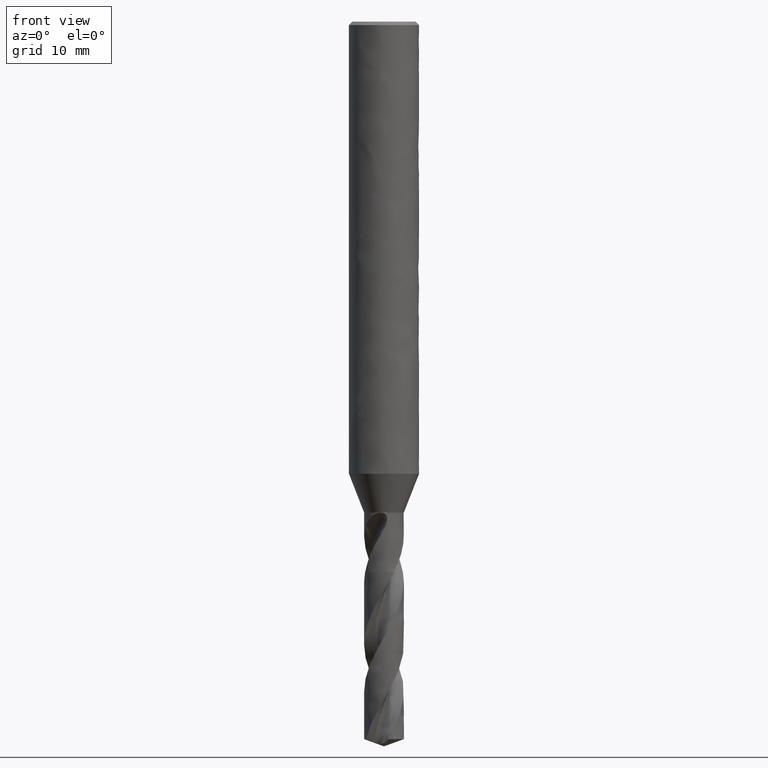
[diagram: clean part render]
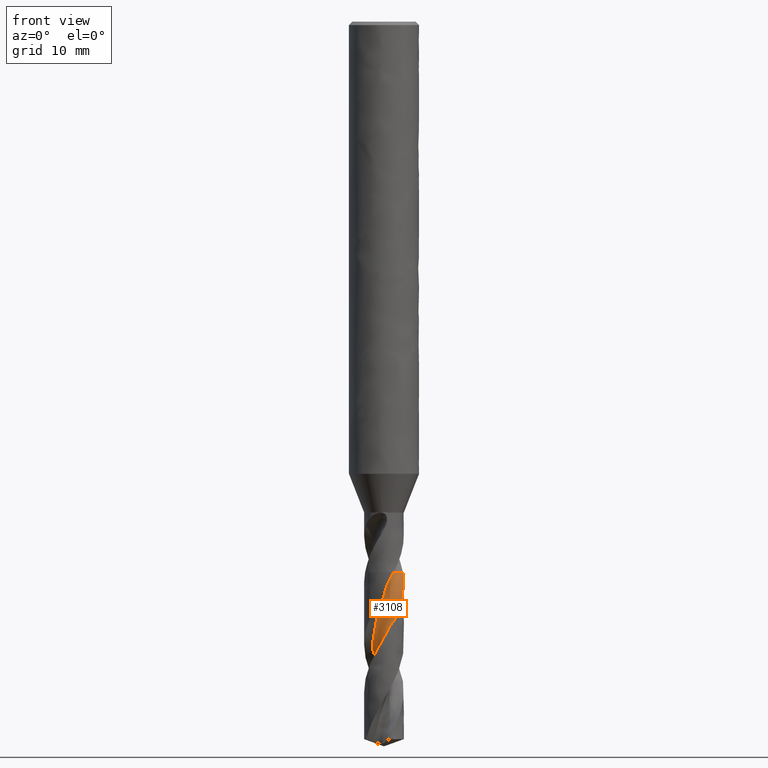
[diagram: same view with one face highlighted and labeled with its STEP entity id]
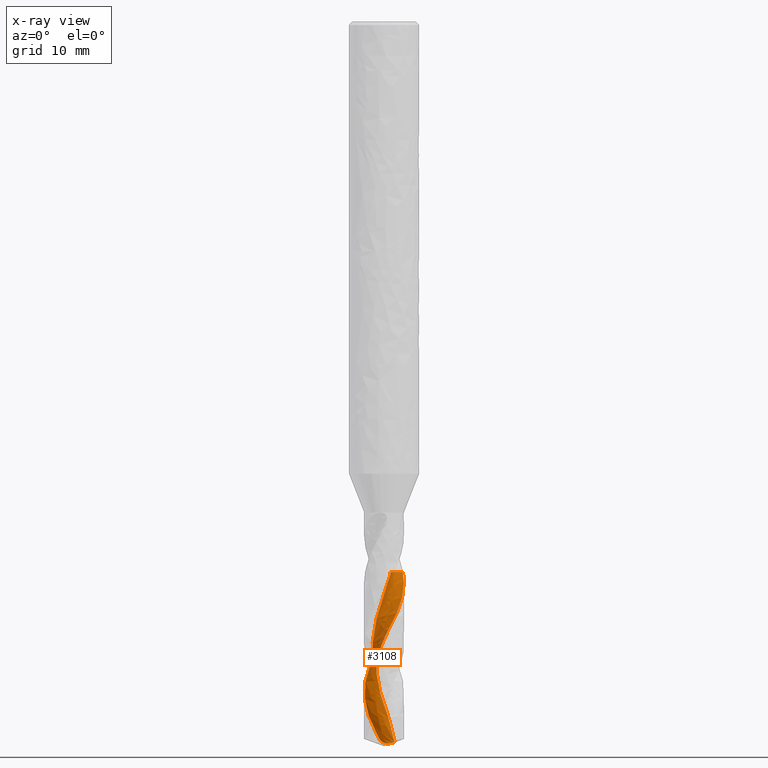
[diagram: x-ray of the same camera — body ghosted, the highlighted face saturated]
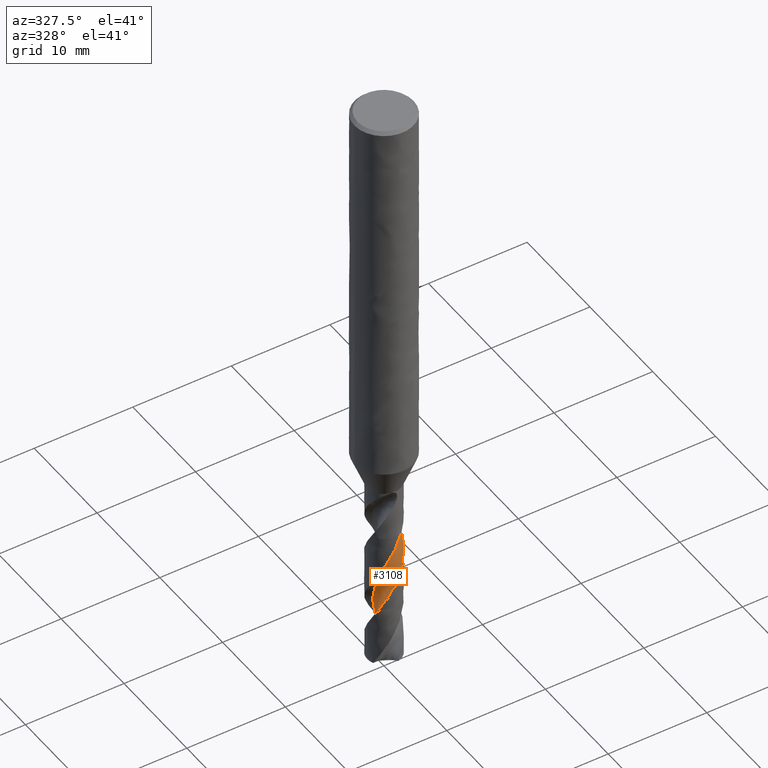
[diagram: same view with one face highlighted and labeled with its STEP entity id]
A machine part, front view. The second image highlights one B-rep face of the part: STEP entity #3108.
The next image is the same camera in x-ray: the body ghosted, the highlighted face saturated — about 0% of this face is hidden behind the body in this view.
A second angle (auxiliary view) of the same face is appended — the face is thin or edge-on in the first view.
In plain terms, the highlighted face is a freeform B-spline surface patch.
Its self-contained STEP definition (entity closure, byte-faithful):
#1727 = VERTEX_POINT('', #1728);
#1728 = CARTESIAN_POINT('', (0.618031492324751, -0.8086987832842, -47.1));
#1734 = EDGE_CURVE('', #1727, #1735, #1737, .T.);
#1735 = VERTEX_POINT('', #1736);
#1736 = CARTESIAN_POINT('', (1.61794167034545, 0.521789949462205, -47.1));
#1737 = B_SPLINE_CURVE_WITH_KNOTS('', 3, (#1738, #1739, #1740, #1741, #1742, #1743, #1744, #1745, #1746, #1747, #1748, #1749, #1750, #1751, #1752, #1753, #1754, #1755, #1756, #1757, #1758, #1759, #1760, #1761, #1762, #1763, #1764, #1765, #1766, #1767, #1768, #1769, #1770, #1771, #1772, #1773, #1774, #1775, #1776, #1777, #1778, #1779, #1780, #1781, #1782, #1783, #1784, #1785, #1786), .UNSPECIFIED., .F., .U., (4, 3, 3, 3, 3, 3, 3, 3, 3, 3, 3, 3, 3, 3, 3, 3, 4), (0., 0.132414467896417, 0.26453587852635, 0.396373986305913, 0.527935768738583, 0.659225693460962, 0.790245888023809, 0.92099622613475, 0.97920382696937, 1.11161682755442, 1.24373682610895, 1.37557356258316, 1.50713400159512, 1.63842259895264, 1.76944147099676, 1.90019048045683, 1.94520905265692), .UNSPECIFIED.);
#1738 = CARTESIAN_POINT('', (0.618031492324749, -0.808698783284199, -47.1));
#1739 = CARTESIAN_POINT('', (0.604582911898384, -0.766659367296961, -47.1));
#1740 = CARTESIAN_POINT('', (0.593846143149466, -0.723655131779357, -47.1));
#1741 = CARTESIAN_POINT('', (0.585956447327686, -0.68022784183545, -47.1));
#1742 = CARTESIAN_POINT('', (0.578084212835681, -0.636896664371425, -47.1));
#1743 = CARTESIAN_POINT('', (0.573013462679577, -0.592962956791534, -47.1));
#1744 = CARTESIAN_POINT('', (0.570807796341173, -0.548977754139738, -47.1));
#1745 = CARTESIAN_POINT('', (0.568606859528117, -0.505086867263303, -47.1));
#1746 = CARTESIAN_POINT('', (0.569249509645297, -0.460961800921687, -47.1));
#1747 = CARTESIAN_POINT('', (0.572727720726931, -0.417153626783443, -47.1));
#1748 = CARTESIAN_POINT('', (0.576198641671442, -0.373437272143517, -47.1));
#1749 = CARTESIAN_POINT('', (0.582507604006801, -0.329855063423228, -47.1));
#1750 = CARTESIAN_POINT('', (0.591576144915949, -0.286949020480702, -47.1));
#1751 = CARTESIAN_POINT('', (0.600625946699482, -0.244131638077553, -47.1));
#1752 = CARTESIAN_POINT('', (0.612461286728677, -0.201810668961502, -47.1));
#1753 = CARTESIAN_POINT('', (0.626935577964107, -0.160510281052784, -47.1));
#1754 = CARTESIAN_POINT('', (0.641380132318414, -0.119294743221045, -47.1));
#1755 = CARTESIAN_POINT('', (0.658512210909826, -0.078925948604169, -47.1));
#1756 = CARTESIAN_POINT('', (0.678120492041487, -0.039901840410441, -47.1));
#1757 = CARTESIAN_POINT('', (0.69768838687093, -0.00095810843208281, -47.1));
#1758 = CARTESIAN_POINT('', (0.719802458512893, 0.036806117631637, -47.1));
#1759 = CARTESIAN_POINT('', (0.744191052149378, 0.0729269325295977, -47.1));
#1760 = CARTESIAN_POINT('', (0.755048397100225, 0.08900724257528, -47.1));
#1761 = CARTESIAN_POINT('', (0.766369320630145, 0.104784069460496, -47.1));
#1762 = CARTESIAN_POINT('', (0.778126193138506, 0.120218908603458, -47.1));
#1763 = CARTESIAN_POINT('', (0.804871201419314, 0.155330703887271, -47.1));
#1764 = CARTESIAN_POINT('', (0.833960856805314, 0.188773050068816, -47.1));
#1765 = CARTESIAN_POINT('', (0.865028697439553, 0.220124651532193, -47.1));
#1766 = CARTESIAN_POINT('', (0.896027791497931, 0.251406878516868, -47.1));
#1767 = CARTESIAN_POINT('', (0.929126027042118, 0.280738564714223, -47.1));
#1768 = CARTESIAN_POINT('', (0.963908280922819, 0.307751827614867, -47.1));
#1769 = CARTESIAN_POINT('', (0.998615962492743, 0.334707174733427, -47.1));
#1770 = CARTESIAN_POINT('', (1.03514505293563, 0.359466398884926, -47.1));
#1771 = CARTESIAN_POINT('', (1.07303935510474, 0.381720292057972, -47.1));
#1772 = CARTESIAN_POINT('', (1.11085424011136, 0.403927546529444, -47.1));
#1773 = CARTESIAN_POINT('', (1.15018551753087, 0.423732157277462, -47.1));
#1774 = CARTESIAN_POINT('', (1.19054404511897, 0.440887824858332, -47.1));
#1775 = CARTESIAN_POINT('', (1.23081918039709, 0.458008043902443, -47.1));
#1776 = CARTESIAN_POINT('', (1.27228374732587, 0.472561051118882, -47.1));
#1777 = CARTESIAN_POINT('', (1.31442419533809, 0.484366603334632, -47.1));
#1778 = CARTESIAN_POINT('', (1.35647806808196, 0.496147901682679, -47.1));
#1779 = CARTESIAN_POINT('', (1.39937811465555, 0.505241556379506, -47.1));
#1780 = CARTESIAN_POINT('', (1.44259517987578, 0.51153540077495, -47.1));
#1781 = CARTESIAN_POINT('', (1.48572322991283, 0.51781628159434, -47.1));
#1782 = CARTESIAN_POINT('', (1.52934376030201, 0.521334664968441, -47.1));
#1783 = CARTESIAN_POINT('', (1.57292093633371, 0.522047331066657, -47.1));
#1784 = CARTESIAN_POINT('', (1.58792512071385, 0.522292711206281, -47.1));
#1785 = CARTESIAN_POINT('', (1.60293933953734, 0.522206821680041, -47.1));
#1786 = CARTESIAN_POINT('', (1.61794166940674, 0.521789915684495, -47.1));
#2008 = VERTEX_POINT('', #2009);
#2009 = CARTESIAN_POINT('', (0.900593143866058, 0.473601072565502, -61.6296496025692));
#2034 = EDGE_CURVE('', #2008, #1727, #2035, .T.);
#2035 = B_SPLINE_CURVE_WITH_KNOTS('', 3, (#2036, #2037, #2038, #2039, #2040, #2041, #2042, #2043, #2044, #2045, #2046, #2047, #2048, #2049, #2050, #2051, #2052, #2053, #2054, #2055, #2056, #2057, #2058, #2059, #2060, #2061, #2062, #2063, #2064, #2065, #2066, #2067, #2068, #2069, #2070, #2071, #2072, #2073, #2074, #2075, #2076, #2077, #2078, #2079, #2080, #2081, #2082, #2083, #2084, #2085), .UNSPECIFIED., .F., .U., (4, 1, 1, 1, 1, 1, 1, 1, 1, 1, 1, 1, 1, 1, 1, 1, 1, 1, 1, 1, 1, 1, 1, 1, 1, 1, 1, 1, 1, 1, 1, 1, 1, 1, 1, 1, 1, 1, 1, 1, 1, 1, 1, 1, 1, 1, 1, 4), (0.420350397430768, 0.6271875, 0.94078125, 1.254375, 1.56796875, 1.8815625, 2.19515625, 2.50875, 2.82234375, 3.1359375, 3.44953125, 3.763125, 4.07671875, 4.3903125, 4.70390625, 5.0175, 5.33109375, 5.6446875, 5.95828125, 6.271875, 6.58546875, 6.8990625, 7.21265625, 7.52625, 7.83984375, 8.1534375, 8.46703125, 8.780625, 9.09421875, 9.4078125, 9.72140625, 10.035, 10.34859375, 10.6621875, 10.97578125, 11.289375, 11.60296875, 11.9165625, 12.23015625, 12.54375, 12.85734375, 13.1709375, 13.48453125, 13.798125, 14.11171875, 14.4253125, 14.73890625, 14.95), .UNSPECIFIED.);
#2036 = CARTESIAN_POINT('', (0.900593143866057, 0.473601072565503, -61.6296496025692));
#2037 = CARTESIAN_POINT('', (0.88909663108777, 0.494181489330291, -61.5607039017128));
#2038 = CARTESIAN_POINT('', (0.858416260722237, 0.544925059186768, -61.3872269508564));
#2039 = CARTESIAN_POINT('', (0.80247456673114, 0.621576995761275, -61.10921875));
#2040 = CARTESIAN_POINT('', (0.730894294827708, 0.700802886661506, -60.795625));
#2041 = CARTESIAN_POINT('', (0.651645233727059, 0.771975525319629, -60.48203125));
#2042 = CARTESIAN_POINT('', (0.565614912916918, 0.834369322157897, -60.1684375));
#2043 = CARTESIAN_POINT('', (0.473757260040917, 0.887354164561376, -59.85484375));
#2044 = CARTESIAN_POINT('', (0.377083113507031, 0.930401796374039, -59.54125));
#2045 = CARTESIAN_POINT('', (0.27664939272255, 0.963090626502894, -59.22765625));
#2046 = CARTESIAN_POINT('', (0.17354808786734, 0.985109583072605, -58.9140625));
#2047 = CARTESIAN_POINT('', (0.0688948962597605, 0.996260806556506, -58.60046875));
#2048 = CARTESIAN_POINT('', (-0.036182307197033, 0.996461209410524, -58.286875));
#2049 = CARTESIAN_POINT('', (-0.140555073109542, 0.985742880712923, -57.97328125));
#2050 = CARTESIAN_POINT('', (-0.243105936185263, 0.964252341163749, -57.6596875));
#2051 = CARTESIAN_POINT('', (-0.342739819249292, 0.93224866021399, -57.34609375));
#2052 = CARTESIAN_POINT('', (-0.4383951728278, 0.890100458768188, -57.0325));
#2053 = CARTESIAN_POINT('', (-0.529054743954637, 0.838281830841213, -56.71890625));
#2054 = CARTESIAN_POINT('', (-0.613755871669376, 0.777367227517651, -56.4053125));
#2055 = CARTESIAN_POINT('', (-0.691600211540215, 0.708025355985706, -56.09171875));
#2056 = CARTESIAN_POINT('', (-0.761762797203743, 0.631012155354021, -55.778125));
#2057 = CARTESIAN_POINT('', (-0.82350035337031, 0.547162919303402, -55.46453125));
#2058 = CARTESIAN_POINT('', (-0.876158781925442, 0.457383643319855, -55.1509375));
#2059 = CARTESIAN_POINT('', (-0.919179750605832, 0.362641681238055, -54.83734375));
#2060 = CARTESIAN_POINT('', (-0.952106322174093, 0.263955802041469, -54.52375));
#2061 = CARTESIAN_POINT('', (-0.974587570988836, 0.162385743268281, -54.21015625));
#2062 = CARTESIAN_POINT('', (-0.986382143290137, 0.0590213619189024, -53.8965625));
#2063 = CARTESIAN_POINT('', (-0.987360727317255, -0.0450285125845154, -53.58296875));
#2064 = CARTESIAN_POINT('', (-0.97750740946456, -0.148647416102408, -53.269375));
#2065 = CARTESIAN_POINT('', (-0.956919902980084, -0.25072266907116, -52.95578125));
#2066 = CARTESIAN_POINT('', (-0.925808646134722, -0.35015676747814, -52.6421875));
#2067 = CARTESIAN_POINT('', (-0.884494777253087, -0.445878635744693, -52.32859375));
#2068 = CARTESIAN_POINT('', (-0.833407004413751, -0.536854632843929, -52.015));
#2069 = CARTESIAN_POINT('', (-0.773077397910616, -0.62209920504156, -51.70140625));
#2070 = CARTESIAN_POINT('', (-0.7041361436346, -0.700685081655795, -51.3878125));
#2071 = CARTESIAN_POINT('', (-0.627305305296396, -0.771752914168686, -51.07421875));
#2072 = CARTESIAN_POINT('', (-0.543391652803215, -0.834520263847745, -50.760625));
#2073 = CARTESIAN_POINT('', (-0.453278622974421, -0.888289848757444, -50.44703125));
#2074 = CARTESIAN_POINT('', (-0.357917487318539, -0.932456967467643, -50.1334375));
#2075 = CARTESIAN_POINT('', (-0.258317808741261, -0.966516024396092, -49.81984375));
#2076 = CARTESIAN_POINT('', (-0.155537278405767, -0.990066088467478, -49.50625));
#2077 = CARTESIAN_POINT('', (-0.0506710217786313, -1.00281543015657, -49.19265625));
#2078 = CARTESIAN_POINT('', (0.0551594998433162, -1.00458497362955, -48.8790625));
#2079 = CARTESIAN_POINT('', (0.160817979896506, -0.995310676192572, -48.56546875));
#2080 = CARTESIAN_POINT('', (0.265164690774124, -0.97504461219404, -48.251875));
#2081 = CARTESIAN_POINT('', (0.367069031112613, -0.943955464476947, -47.93828125));
#2082 = CARTESIAN_POINT('', (0.465418223649376, -0.902325721072051, -47.6246875));
#2083 = CARTESIAN_POINT('', (0.548928985552527, -0.85619608987983, -47.3452604166667));
#2084 = CARTESIAN_POINT('', (0.598544607572714, -0.822821182327075, -47.1703645833333));
#2085 = CARTESIAN_POINT('', (0.618031492324751, -0.8086987832842, -47.1));
#2969 = EDGE_CURVE('', #1735, #2970, #2972, .T.);
#2970 = VERTEX_POINT('', #2971);
#2971 = CARTESIAN_POINT('', (1.69886078488604, 0.06222566654029, -47.9127110224979));
#2972 = B_SPLINE_CURVE_WITH_KNOTS('', 3, (#2973, #2974, #2975, #2976, #2977, #2978, #2979, #2980, #2981, #2982), .UNSPECIFIED., .F., .U., (4, 3, 3, 4), (2.04236680302544, 2.34638589182506, 2.78859609689633, 2.98010819698806), .UNSPECIFIED.);
#2973 = CARTESIAN_POINT('', (1.61794167034545, 0.521789949462205, -47.1));
#2974 = CARTESIAN_POINT('', (1.6334708824653, 0.473637700799258, -47.1878062558081));
#2975 = CARTESIAN_POINT('', (1.64685376451737, 0.424772247648373, -47.275669669243));
#2976 = CARTESIAN_POINT('', (1.65802509109485, 0.375436808664161, -47.3634816841506));
#2977 = CARTESIAN_POINT('', (1.67427431622163, 0.303676069308517, -47.4912084307615));
#2978 = CARTESIAN_POINT('', (1.6858619193593, 0.230826135235117, -47.6190052595892));
#2979 = CARTESIAN_POINT('', (1.69268063615451, 0.157582562447593, -47.7467418908916));
#2980 = CARTESIAN_POINT('', (1.69563368146737, 0.125862284892037, -47.8020619858122));
#2981 = CARTESIAN_POINT('', (1.69769483725328, 0.0940579123106205, -47.8573887116082));
#2982 = CARTESIAN_POINT('', (1.69886078488604, 0.0622256665403072, -47.9127110224979));
#3108 = ADVANCED_FACE('', (#3109), #3268, .T.);
#3109 = FACE_OUTER_BOUND('', #3110, .T.);
#3110 = EDGE_LOOP('', (#3111, #3112, #3113, #3206, #3218, #3267));
#3111 = ORIENTED_EDGE('', *, *, #1734, .F.);
#3112 = ORIENTED_EDGE('', *, *, #2034, .F.);
#3113 = ORIENTED_EDGE('', *, *, #3114, .T.);
#3114 = EDGE_CURVE('', #2008, #3115, #3117, .T.);
#3115 = VERTEX_POINT('', #3116);
#3116 = CARTESIAN_POINT('', (-0.381207649741527, 1.65670779794705, -61.3812506017475));
#3117 = B_SPLINE_CURVE_WITH_KNOTS('', 3, (#3118, #3119, #3120, #3121, #3122, #3123, #3124, #3125, #3126, #3127, #3128, #3129, #3130, #3131, #3132, #3133, #3134, #3135, #3136, #3137, #3138, #3139, #3140, #3141, #3142, #3143, #3144, #3145, #3146, #3147, #3148, #3149, #3150, #3151, #3152, #3153, #3154, #3155, #3156, #3157, #3158, #3159, #3160, #3161, #3162, #3163, #3164, #3165, #3166, #3167, #3168, #3169, #3170, #3171, #3172, #3173, #3174, #3175, #3176, #3177, #3178, #3179, #3180, #3181, #3182, #3183, #3184, #3185, #3186, #3187, #3188, #3189, #3190, #3191, #3192, #3193, #3194, #3195, #3196, #3197, #3198, #3199, #3200, #3201, #3202, #3203, #3204, #3205), .UNSPECIFIED., .F., .U., (4, 3, 3, 3, 3, 3, 3, 3, 3, 3, 3, 3, 3, 3, 3, 3, 3, 3, 3, 3, 3, 3, 3, 3, 3, 3, 3, 3, 3, 4), (0., 0.087736804954015, 0.175313604319629, 0.233592483702, 0.291786898436233, 0.34989091802178, 0.407910682743587, 0.465869295109886, 0.523807408004701, 0.581775879321774, 0.639820930342937, 0.697968833758567, 0.756219330741334, 0.814550724445924, 0.872931299192583, 0.931329699615461, 0.989720669662562, 1.02878987331997, 1.05481217639862, 1.14346229643422, 1.23175328480974, 1.31976427557642, 1.40755577682321, 1.49517209721768, 1.58264498905504, 1.66999687970493, 1.7572433496309, 1.84439491972149, 1.93145829909166, 2.0282530318019), .UNSPECIFIED.);
#3118 = CARTESIAN_POINT('', (0.900593143866058, 0.473601072565502, -61.6296496025692));
#3119 = CARTESIAN_POINT('', (0.873915545816821, 0.466661012012999, -61.639419276965));
#3120 = CARTESIAN_POINT('', (0.846765997592629, 0.461188716615392, -61.6490736614793));
#3121 = CARTESIAN_POINT('', (0.819351463363141, 0.457280707326207, -61.6584798292603));
#3122 = CARTESIAN_POINT('', (0.791986925012606, 0.453379825072548, -61.6678688430156));
#3123 = CARTESIAN_POINT('', (0.764276518247691, 0.45102673640264, -61.6770390482816));
#3124 = CARTESIAN_POINT('', (0.736446353149242, 0.450288540702773, -61.6858211550046));
#3125 = CARTESIAN_POINT('', (0.717926484340233, 0.449797300802883, -61.6916652979984));
#3126 = CARTESIAN_POINT('', (0.699321152204079, 0.450019168004605, -61.6973472579632));
#3127 = CARTESIAN_POINT('', (0.680701792454403, 0.45096394670661, -61.7028069008444));
#3128 = CARTESIAN_POINT('', (0.662109418084104, 0.451907356123524, -61.7082586309651));
#3129 = CARTESIAN_POINT('', (0.643475016826177, 0.453573212051435, -61.7134968073165));
#3130 = CARTESIAN_POINT('', (0.624873503510298, 0.45596063246724, -61.7184537916296));
#3131 = CARTESIAN_POINT('', (0.606300884488995, 0.458344344430535, -61.7234030761086));
#3132 = CARTESIAN_POINT('', (0.587731608567595, 0.46145139723604, -61.7280796237138));
#3133 = CARTESIAN_POINT('', (0.569243791672439, 0.465267336318905, -61.7324107797091));
#3134 = CARTESIAN_POINT('', (0.550782783395766, 0.469077742025081, -61.7367356552274));
#3135 = CARTESIAN_POINT('', (0.53237239142666, 0.473601524993575, -61.7407228402787));
#3136 = CARTESIAN_POINT('', (0.514093091325785, 0.478807666135574, -61.7442999688363));
#3137 = CARTESIAN_POINT('', (0.49583305745709, 0.484008320047568, -61.7478733271298));
#3138 = CARTESIAN_POINT('', (0.477672548871215, 0.489898942025117, -61.7510429718125));
#3139 = CARTESIAN_POINT('', (0.459692322982028, 0.49642992955873, -61.7537452312933));
#3140 = CARTESIAN_POINT('', (0.441718456546817, 0.502958607137235, -61.7564465350077));
#3141 = CARTESIAN_POINT('', (0.423893572430117, 0.510138456627629, -61.7586848187696));
#3142 = CARTESIAN_POINT('', (0.406294857134295, 0.517901920025118, -61.7604152532021));
#3143 = CARTESIAN_POINT('', (0.388686920460636, 0.52566945132348, -61.7621465943478));
#3144 = CARTESIAN_POINT('', (0.37127543072721, 0.534034094600519, -61.7633721193448));
#3145 = CARTESIAN_POINT('', (0.354128754417751, 0.542914968165498, -61.7640743264361));
#3146 = CARTESIAN_POINT('', (0.336959426356952, 0.551807573878215, -61.7647774611837));
#3147 = CARTESIAN_POINT('', (0.320028079013711, 0.561231485329713, -61.7649571277617));
#3148 = CARTESIAN_POINT('', (0.30338934599532, 0.571100709625821, -61.7646260141404));
#3149 = CARTESIAN_POINT('', (0.286721130126942, 0.580987421603178, -61.7642943138053));
#3150 = CARTESIAN_POINT('', (0.270322499912908, 0.591334686521687, -61.7634501099943));
#3151 = CARTESIAN_POINT('', (0.254231975549154, 0.602060541150228, -61.7621319342635));
#3152 = CARTESIAN_POINT('', (0.238113061781919, 0.612805319998256, -61.7608114328023));
#3153 = CARTESIAN_POINT('', (0.222283329821348, 0.623942853035375, -61.7590144250361));
#3154 = CARTESIAN_POINT('', (0.206766278275696, 0.635402037250919, -61.7567959602333));
#3155 = CARTESIAN_POINT('', (0.191227677066652, 0.646877135672965, -61.7545744144862));
#3156 = CARTESIAN_POINT('', (0.175986672315675, 0.658686233434081, -61.7519286710601));
#3157 = CARTESIAN_POINT('', (0.161055348549157, 0.670772002456406, -61.748920177325));
#3158 = CARTESIAN_POINT('', (0.146111435711547, 0.682867961372663, -61.7459091470338));
#3159 = CARTESIAN_POINT('', (0.131465348978061, 0.695250925798871, -61.7425327553774));
#3160 = CARTESIAN_POINT('', (0.117122070614954, 0.707876884591618, -61.7388510999374));
#3161 = CARTESIAN_POINT('', (0.102774412736278, 0.720506698540885, -61.7351683203564));
#3162 = CARTESIAN_POINT('', (0.0887202194353098, 0.733388012896899, -61.7311779128428));
#3163 = CARTESIAN_POINT('', (0.074961026774103, 0.746487852789211, -61.726934192241));
#3164 = CARTESIAN_POINT('', (0.0612035847768037, 0.75958602591099, -61.7226910115929));
#3165 = CARTESIAN_POINT('', (0.0477336514021188, 0.772909764808764, -61.7181923958021));
#3166 = CARTESIAN_POINT('', (0.0345518277136987, 0.78643438847559, -61.7134851662169));
#3167 = CARTESIAN_POINT('', (0.025731913370034, 0.795483669143521, -61.7103355745733));
#3168 = CARTESIAN_POINT('', (0.0170387333161297, 0.804625312955694, -61.7070916468967));
#3169 = CARTESIAN_POINT('', (0.0084725784961693, 0.813853432816587, -61.7037655241402));
#3170 = CARTESIAN_POINT('', (0.00276703407559905, 0.819999883457658, -61.7015501379448));
#3171 = CARTESIAN_POINT('', (-0.00288273211310762, 0.826185336901564, -61.6992980355044));
#3172 = CARTESIAN_POINT('', (-0.00847658126530775, 0.832408278671218, -61.697012455489));
#3173 = CARTESIAN_POINT('', (-0.0275331343038624, 0.853607960082469, -61.6892261753082));
#3174 = CARTESIAN_POINT('', (-0.0459514921326319, 0.875253313258865, -61.6810493643486));
#3175 = CARTESIAN_POINT('', (-0.0637212244021331, 0.897295503629726, -61.6725886715029));
#3176 = CARTESIAN_POINT('', (-0.0814189694769549, 0.919248398595044, -61.6641622538807));
#3177 = CARTESIAN_POINT('', (-0.098486781983559, 0.941612053590396, -61.6554473185107));
#3178 = CARTESIAN_POINT('', (-0.114905916980162, 0.964347856043296, -61.6465232171654));
#3179 = CARTESIAN_POINT('', (-0.131272981900048, 0.987011556343544, -61.6376274168628));
#3180 = CARTESIAN_POINT('', (-0.147006855149287, 1.01006115235946, -61.628517133508));
#3181 = CARTESIAN_POINT('', (-0.162080925678721, 1.0334620446348, -61.6192526838856));
#3182 = CARTESIAN_POINT('', (-0.177117403170348, 1.05680457771472, -61.6100113387594));
#3183 = CARTESIAN_POINT('', (-0.191507490467652, 1.08051265271094, -61.6006100179762));
#3184 = CARTESIAN_POINT('', (-0.205217604520893, 1.1045519993331, -61.5910961043592));
#3185 = CARTESIAN_POINT('', (-0.218900361148515, 1.12854337738004, -61.5816011749886));
#3186 = CARTESIAN_POINT('', (-0.231915140497221, 1.15288122245024, -61.571987390948));
#3187 = CARTESIAN_POINT('', (-0.24422223644899, 1.17752918519035, -61.5622935240585));
#3188 = CARTESIAN_POINT('', (-0.2565091855947, 1.20213679903524, -61.5526155261001));
#3189 = CARTESIAN_POINT('', (-0.268099398866489, 1.22707102965, -61.5428507002034));
#3190 = CARTESIAN_POINT('', (-0.278947758727813, 1.25229163222905, -61.5330322626087));
#3191 = CARTESIAN_POINT('', (-0.289781112060855, 1.27747734716695, -61.5232274068515));
#3192 = CARTESIAN_POINT('', (-0.299882693675008, 1.30296755734142, -61.5133616455606));
#3193 = CARTESIAN_POINT('', (-0.309202597653607, 1.32871653018326, -61.5034648397522));
#3194 = CARTESIAN_POINT('', (-0.318511253895989, 1.35443442784931, -61.4935799779146));
#3195 = CARTESIAN_POINT('', (-0.327047497923303, 1.38043115635522, -61.4836561443008));
#3196 = CARTESIAN_POINT('', (-0.334757266411273, 1.40665392844054, -61.4737214812983));
#3197 = CARTESIAN_POINT('', (-0.342458648820574, 1.43284817746062, -61.4637976244395));
#3198 = CARTESIAN_POINT('', (-0.349341944453415, 1.4592908206692, -61.4538542804113));
#3199 = CARTESIAN_POINT('', (-0.355349688096707, 1.48592037028438, -61.4439191401855));
#3200 = CARTESIAN_POINT('', (-0.361351352363122, 1.51252297283293, -61.4339940535615));
#3201 = CARTESIAN_POINT('', (-0.366484811246897, 1.5393374749422, -61.4240676766547));
#3202 = CARTESIAN_POINT('', (-0.370690211930571, 1.56629192080237, -61.4141682709009));
#3203 = CARTESIAN_POINT('', (-0.375365663745794, 1.59625915158599, -61.4031623767941));
#3204 = CARTESIAN_POINT('', (-0.37889941565526, 1.62643686632424, -61.3921761328419));
#3205 = CARTESIAN_POINT('', (-0.381207649741527, 1.65670779794705, -61.3812506017475));
#3206 = ORIENTED_EDGE('', *, *, #3207, .F.);
#3207 = EDGE_CURVE('', #3208, #3115, #3210, .T.);
#3208 = VERTEX_POINT('', #3209);
#3209 = CARTESIAN_POINT('', (-0.666461882619235, 1.56391449862697, -60.8507741582357));
#3210 = B_SPLINE_CURVE_WITH_KNOTS('', 3, (#3211, #3212, #3213, #3214, #3215, #3216, #3217), .UNSPECIFIED., .F., .U., (4, 3, 4), (0., 0.442571051262796, 0.609529027175554), .UNSPECIFIED.);
#3211 = CARTESIAN_POINT('', (-0.666461882619225, 1.56391449862697, -60.8507741582357));
#3212 = CARTESIAN_POINT('', (-0.599581770536708, 1.59241544637535, -60.9791407576831));
#3213 = CARTESIAN_POINT('', (-0.530846429524956, 1.61662750097689, -61.1075774000474));
#3214 = CARTESIAN_POINT('', (-0.460888255132056, 1.63633187840405, -61.235955079627));
#3215 = CARTESIAN_POINT('', (-0.434496842585158, 1.64376526782813, -61.2843849926858));
#3216 = CARTESIAN_POINT('', (-0.407925077455099, 1.65056013096651, -61.3328191691804));
#3217 = CARTESIAN_POINT('', (-0.381207649741524, 1.65670779794705, -61.3812506017475));
#3218 = ORIENTED_EDGE('', *, *, #3219, .T.);
#3219 = EDGE_CURVE('', #3208, #2970, #3220, .T.);
#3220 = B_SPLINE_CURVE_WITH_KNOTS('', 3, (#3221, #3222, #3223, #3224, #3225, #3226, #3227, #3228, #3229, #3230, #3231, #3232, #3233, #3234, #3235, #3236, #3237, #3238, #3239, #3240, #3241, #3242, #3243, #3244, #3245, #3246, #3247, #3248, #3249, #3250, #3251, #3252, #3253, #3254, #3255, #3256, #3257, #3258, #3259, #3260, #3261, #3262, #3263, #3264, #3265, #3266), .UNSPECIFIED., .F., .U., (4, 1, 1, 1, 1, 1, 1, 1, 1, 1, 1, 1, 1, 1, 1, 1, 1, 1, 1, 1, 1, 1, 1, 1, 1, 1, 1, 1, 1, 1, 1, 1, 1, 1, 1, 1, 1, 1, 1, 1, 1, 1, 1, 4), (1.19922584176433, 1.254375, 1.56796875, 1.8815625, 2.19515625, 2.50875, 2.82234375, 3.1359375, 3.44953125, 3.763125, 4.07671875, 4.3903125, 4.70390625, 5.0175, 5.33109375, 5.6446875, 5.95828125, 6.271875, 6.58546875, 6.8990625, 7.21265625, 7.52625, 7.83984375, 8.1534375, 8.46703125, 8.780625, 9.09421875, 9.4078125, 9.72140625, 10.035, 10.34859375, 10.6621875, 10.97578125, 11.289375, 11.60296875, 11.9165625, 12.23015625, 12.54375, 12.85734375, 13.1709375, 13.48453125, 13.798125, 14.11171875, 14.1372889775021), .UNSPECIFIED.);
#3221 = CARTESIAN_POINT('', (-0.666461882619235, 1.56391449862697, -60.8507741582357));
#3222 = CARTESIAN_POINT('', (-0.676025976696615, 1.55957963749224, -60.8323911054904));
#3223 = CARTESIAN_POINT('', (-0.739694770968782, 1.5300151665782, -60.7094768027452));
#3224 = CARTESIAN_POINT('', (-0.853921394594385, 1.46818883646398, -60.48203125));
#3225 = CARTESIAN_POINT('', (-1.00134653960241, 1.36724502923022, -60.1684375));
#3226 = CARTESIAN_POINT('', (-1.13716831292383, 1.25175552311692, -59.85484375));
#3227 = CARTESIAN_POINT('', (-1.25997886105044, 1.12302219590057, -59.54125));
#3228 = CARTESIAN_POINT('', (-1.36851316808685, 0.982480186779804, -59.22765625));
#3229 = CARTESIAN_POINT('', (-1.46166138244538, 0.831682642169886, -58.9140625));
#3230 = CARTESIAN_POINT('', (-1.53847950502343, 0.672284245588309, -58.60046875));
#3231 = CARTESIAN_POINT('', (-1.59819837645806, 0.506023844050801, -58.286875));
#3232 = CARTESIAN_POINT('', (-1.64023087719735, 0.334706305092964, -57.97328125));
#3233 = CARTESIAN_POINT('', (-1.66417728213395, 0.160183794348582, -57.6596875));
#3234 = CARTESIAN_POINT('', (-1.66982872621163, -0.0156633453800675, -57.34609375));
#3235 = CARTESIAN_POINT('', (-1.65716875602019, -0.190945926362845, -57.0325));
#3236 = CARTESIAN_POINT('', (-1.62637296011426, -0.363785272243727, -56.71890625));
#3237 = CARTESIAN_POINT('', (-1.57780668872922, -0.532332411555354, -56.4053125));
#3238 = CARTESIAN_POINT('', (-1.51202089123811, -0.694786923973439, -56.09171875));
#3239 = CARTESIAN_POINT('', (-1.42974611704214, -0.849415258745773, -55.778125));
#3240 = CARTESIAN_POINT('', (-1.33188474244795, -0.99456835023722, -55.46453125));
#3241 = CARTESIAN_POINT('', (-1.21950150232802, -1.12869836255333, -55.1509375));
#3242 = CARTESIAN_POINT('', (-1.09381242085287, -1.25037440368409, -54.83734375));
#3243 = CARTESIAN_POINT('', (-0.956172250202362, -1.35829705946721, -54.52375));
#3244 = CARTESIAN_POINT('', (-0.808060539790158, -1.45131160882211, -54.21015625));
#3245 = CARTESIAN_POINT('', (-0.651066471061365, -1.52841979405655, -53.8965625));
#3246 = CARTESIAN_POINT('', (-0.486872604248597, -1.58879003349323, -53.58296875));
#3247 = CARTESIAN_POINT('', (-0.317237693503262, -1.63176597809303, -53.269375));
#3248 = CARTESIAN_POINT('', (-0.143978735476207, -1.65687332904518, -52.95578125));
#3249 = CARTESIAN_POINT('', (0.031047576367438, -1.66382484932823, -52.6421875));
#3250 = CARTESIAN_POINT('', (0.205963813711057, -1.65252351888787, -52.32859375));
#3251 = CARTESIAN_POINT('', (0.378891009492721, -1.6230638001929, -52.015));
#3252 = CARTESIAN_POINT('', (0.547967903470646, -1.57573099837935, -51.70140625));
#3253 = CARTESIAN_POINT('', (0.711370051634993, -1.51099871783318, -51.3878125));
#3254 = CARTESIAN_POINT('', (0.867328614567297, -1.42952443474342, -51.07421875));
#3255 = CARTESIAN_POINT('', (1.01414864218127, -1.33214322275687, -50.760625));
#3256 = CARTESIAN_POINT('', (1.15022667632124, -1.21985968614711, -50.44703125));
#3257 = CARTESIAN_POINT('', (1.27406749804492, -1.09383817206208, -50.1334375));
#3258 = CARTESIAN_POINT('', (1.38429985445797, -0.955391349044164, -49.81984375));
#3259 = CARTESIAN_POINT('', (1.47969100536136, -0.805967257636876, -49.50625));
#3260 = CARTESIAN_POINT('', (1.5591599524026, -0.647134942994894, -49.19265625));
#3261 = CARTESIAN_POINT('', (1.62178917913087, -0.480568833690263, -48.8790625));
#3262 = CARTESIAN_POINT('', (1.66683491426115, -0.308031893295693, -48.56546875));
#3263 = CARTESIAN_POINT('', (1.6937353061358, -0.131358144617328, -48.251875));
#3264 = CARTESIAN_POINT('', (1.69955181248912, -0.00721162485542307, -48.0342890908326));
#3265 = CARTESIAN_POINT('', (1.69892849618394, 0.0573574850678996, -47.9212344316653));
#3266 = CARTESIAN_POINT('', (1.69886078488604, 0.0622256665402889, -47.9127110224979));
#3267 = ORIENTED_EDGE('', *, *, #2969, .F.);
#3268 = (
   BOUNDED_SURFACE ()
   B_SPLINE_SURFACE (3, 2, ((#3269, #3270, #3271, #3272, #3273), (#3274, #3275, #3276, #3277, #3278), (#3279, #3280, #3281, #3282, #3283), (#3284, #3285, #3286, #3287, #3288), (#3289, #3290, #3291, #3292, #3293), (#3294, #3295, #3296, #3297, #3298), (#3299, #3300, #3301, #3302, #3303), (#3304, #3305, #3306, #3307, #3308), (#3309, #3310, #3311, #3312, #3313), (#3314, #3315, #3316, #3317, #3318), (#3319, #3320, #3321, #3322, #3323), (#3324, #3325, #3326, #3327, #3328), (#3329, #3330, #3331, #3332, #3333), (#3334, #3335, #3336, #3337, #3338), (#3339, #3340, #3341, #3342, #3343), (#3344, #3345, #3346, #3347, #3348), (#3349, #3350, #3351, #3352, #3353), (#3354, #3355, #3356, #3357, #3358), (#3359, #3360, #3361, #3362, #3363), (#3364, #3365, #3366, #3367, #3368), (#3369, #3370, #3371, #3372, #3373), (#3374, #3375, #3376, #3377, #3378), (#3379, #3380, #3381, #3382, #3383), (#3384, #3385, #3386, #3387, #3388), (#3389, #3390, #3391, #3392, #3393), (#3394, #3395, #3396, #3397, #3398), (#3399, #3400, #3401, #3402, #3403), (#3404, #3405, #3406, #3407, #3408), (#3409, #3410, #3411, #3412, #3413), (#3414, #3415, #3416, #3417, #3418), (#3419, #3420, #3421, #3422, #3423), (#3424, #3425, #3426, #3427, #3428), (#3429, #3430, #3431, #3432, #3433), (#3434, #3435, #3436, #3437, #3438), (#3439, #3440, #3441, #3442, #3443), (#3444, #3445, #3446, #3447, #3448), (#3449, #3450, #3451, #3452, #3453), (#3454, #3455, #3456, #3457, #3458), (#3459, #3460, #3461, #3462, #3463), (#3464, #3465, #3466, #3467, #3468), (#3469, #3470, #3471, #3472, #3473), (#3474, #3475, #3476, #3477, #3478), (#3479, #3480, #3481, #3482, #3483), (#3484, #3485, #3486, #3487, #3488), (#3489, #3490, #3491, #3492, #3493), (#3494, #3495, #3496, #3497, #3498), (#3499, #3500, #3501, #3502, #3503), (#3504, #3505, #3506, #3507, #3508), (#3509, #3510, #3511, #3512, #3513), (#3514, #3515, #3516, #3517, #3518)), .UNSPECIFIED., .F., .F., .U.)
   B_SPLINE_SURFACE_WITH_KNOTS ((4, 1, 1, 1, 1, 1, 1, 1, 1, 1, 1, 1, 1, 1, 1, 1, 1, 1, 1, 1, 1, 1, 1, 1, 1, 1, 1, 1, 1, 1, 1, 1, 1, 1, 1, 1, 1, 1, 1, 1, 1, 1, 1, 1, 1, 1, 1, 4), (3, 2, 3), (0.285042872238283, 0.6271875, 0.94078125, 1.254375, 1.56796875, 1.8815625, 2.19515625, 2.50875, 2.82234375, 3.1359375, 3.44953125, 3.763125, 4.07671875, 4.3903125, 4.70390625, 5.0175, 5.33109375, 5.6446875, 5.95828125, 6.271875, 6.58546875, 6.8990625, 7.21265625, 7.52625, 7.83984375, 8.1534375, 8.46703125, 8.780625, 9.09421875, 9.4078125, 9.72140625, 10.035, 10.34859375, 10.6621875, 10.97578125, 11.289375, 11.60296875, 11.9165625, 12.23015625, 12.54375, 12.85734375, 13.1709375, 13.48453125, 13.798125, 14.11171875, 14.4253125, 14.73890625, 14.9500000000002), (0., 0.5, 1.), .UNSPECIFIED.)
   GEOMETRIC_REPRESENTATION_ITEM ()
   RATIONAL_B_SPLINE_SURFACE (((1., 0.887010833178222, 1., 0.887010833178222, 1.), (1., 0.887010833178222, 1., 0.887010833178222, 1.), (1., 0.887010833178222, 1., 0.887010833178222, 1.), (1., 0.887010833178222, 1., 0.887010833178222, 1.), (1., 0.887010833178222, 1., 0.887010833178222, 1.), (1., 0.887010833178222, 1., 0.887010833178222, 1.), (1., 0.887010833178222, 1., 0.887010833178222, 1.), (1., 0.887010833178222, 1., 0.887010833178222, 1.), (1., 0.887010833178222, 1., 0.887010833178222, 1.), (1., 0.887010833178222, 1., 0.887010833178222, 1.), (1., 0.887010833178222, 1., 0.887010833178222, 1.), (1., 0.887010833178222, 1., 0.887010833178222, 1.), (1., 0.887010833178222, 1., 0.887010833178222, 1.), (1., 0.887010833178222, 1., 0.887010833178222, 1.), (1., 0.887010833178222, 1., 0.887010833178222, 1.), (1., 0.887010833178222, 1., 0.887010833178222, 1.), (1., 0.887010833178222, 1., 0.887010833178222, 1.), (1., 0.887010833178222, 1., 0.887010833178222, 1.), (1., 0.887010833178222, 1., 0.887010833178222, 1.), (1., 0.887010833178222, 1., 0.887010833178222, 1.), (1., 0.887010833178222, 1., 0.887010833178222, 1.), (1., 0.887010833178222, 1., 0.887010833178222, 1.), (1., 0.887010833178222, 1., 0.887010833178222, 1.), (1., 0.887010833178222, 1., 0.887010833178222, 1.), (1., 0.887010833178222, 1., 0.887010833178222, 1.), (1., 0.887010833178222, 1., 0.887010833178222, 1.), (1., 0.887010833178222, 1., 0.887010833178222, 1.), (1., 0.887010833178222, 1., 0.887010833178222, 1.), (1., 0.887010833178222, 1., 0.887010833178222, 1.), (1., 0.887010833178222, 1., 0.887010833178222, 1.), (1., 0.887010833178222, 1., 0.887010833178222, 1.), (1., 0.887010833178222, 1., 0.887010833178222, 1.), (1., 0.887010833178222, 1., 0.887010833178222, 1.), (1., 0.887010833178222, 1., 0.887010833178222, 1.), (1., 0.887010833178222, 1., 0.887010833178222, 1.), (1., 0.887010833178221, 1., 0.887010833178221, 1.), (1., 0.887010833178222, 1., 0.887010833178222, 1.), (1., 0.887010833178221, 1., 0.887010833178221, 1.), (1., 0.887010833178222, 1., 0.887010833178222, 1.), (1., 0.887010833178222, 1., 0.887010833178222, 1.), (1., 0.887010833178222, 1., 0.887010833178222, 1.), (1., 0.887010833178221, 1., 0.887010833178221, 1.), (1., 0.887010833178221, 1., 0.887010833178221, 1.), (1., 0.887010833178222, 1., 0.887010833178222, 1.), (1., 0.887010833178222, 1., 0.887010833178222, 1.), (1., 0.887010833178222, 1., 0.887010833178222, 1.), (1., 0.887010833178221, 1., 0.887010833178221, 1.), (1., 0.887010833178222, 1., 0.887010833178222, 1.), (1., 0.887010833178222, 1., 0.887010833178222, 1.), (1., 0.887010833178222, 1., 0.887010833178222, 1.)))
   REPRESENTATION_ITEM ('')
   SURFACE ()
);
#3269 = CARTESIAN_POINT('', (-0.163743394544658, 1.70485362167731, -61.7649571277617));
#3270 = CARTESIAN_POINT('', (-0.296940095353548, 1.19033259034824, -61.7649571277617));
#3271 = CARTESIAN_POINT('', (0.0481323703056654, 0.786107101010688, -61.7649571277617));
#3272 = CARTESIAN_POINT('', (0.393204835964879, 0.38188161167314, -61.7649571277617));
#3273 = CARTESIAN_POINT('', (0.922252407045129, 0.432694211689239, -61.7649571277617));
#3274 = CARTESIAN_POINT('', (-0.228895849151848, 1.69689568961131, -61.6509089185078));
#3275 = CARTESIAN_POINT('', (-0.342249218538633, 1.17778025619635, -61.6509089185078));
#3276 = CARTESIAN_POINT('', (0.0179684283039424, 0.787174231583137, -61.6509089185078));
#3277 = CARTESIAN_POINT('', (0.378186075146518, 0.396568206969924, -61.6509089185078));
#3278 = CARTESIAN_POINT('', (0.904764152906751, 0.467598817155095, -61.6509089185078));
#3279 = CARTESIAN_POINT('', (-0.352710778047483, 1.67456438853659, -61.4323294592539));
#3280 = CARTESIAN_POINT('', (-0.427589085190709, 1.14881973303871, -61.4323294592539));
#3281 = CARTESIAN_POINT('', (-0.0398727084368133, 0.785928268738347, -61.4323294592539));
#3282 = CARTESIAN_POINT('', (0.347843668317082, 0.423036804437988, -61.4323294592539));
#3283 = CARTESIAN_POINT('', (0.867491930847186, 0.53248947418465, -61.4323294592539));
#3284 = CARTESIAN_POINT('', (-0.53052244779619, 1.62198171026092, -61.10921875));
#3285 = CARTESIAN_POINT('', (-0.547969293234117, 1.0926983014437, -61.10921875));
#3286 = CARTESIAN_POINT('', (-0.124412806325097, 0.774822190887711, -61.10921875));
#3287 = CARTESIAN_POINT('', (0.299143680583924, 0.456946080331723, -61.10921875));
#3288 = CARTESIAN_POINT('', (0.80247456673114, 0.621576995761276, -61.10921875));
#3289 = CARTESIAN_POINT('', (-0.696429833118498, 1.5534327573727, -60.795625));
#3290 = CARTESIAN_POINT('', (-0.658221970305951, 1.02652988766387, -60.795625));
#3291 = CARTESIAN_POINT('', (-0.204693277649617, 0.755608866283955, -60.795625));
#3292 = CARTESIAN_POINT('', (0.248835415006717, 0.484687844904036, -60.795625));
#3293 = CARTESIAN_POINT('', (0.730894294827708, 0.700802886661506, -60.795625));
#3294 = CARTESIAN_POINT('', (-0.853921394594386, 1.46818883646398, -60.48203125));
#3295 = CARTESIAN_POINT('', (-0.760740988005243, 0.949428039837221, -60.48203125));
#3296 = CARTESIAN_POINT('', (-0.282350935402304, 0.728207991334589, -60.48203125));
#3297 = CARTESIAN_POINT('', (0.196039117200635, 0.506987942831958, -60.48203125));
#3298 = CARTESIAN_POINT('', (0.651645233727059, 0.771975525319629, -60.48203125));
#3299 = CARTESIAN_POINT('', (-1.00134653960241, 1.36724502923022, -60.1684375));
#3300 = CARTESIAN_POINT('', (-0.85446268624883, 0.862272855803713, -60.1684375));
#3301 = CARTESIAN_POINT('', (-0.356564580913401, 0.692952924860924, -60.1684375));
#3302 = CARTESIAN_POINT('', (0.141333524422028, 0.523632993918135, -60.1684375));
#3303 = CARTESIAN_POINT('', (0.565614912916918, 0.834369322157897, -60.1684375));
#3304 = CARTESIAN_POINT('', (-1.13716831292383, 1.25175552311692, -59.85484375));
#3305 = CARTESIAN_POINT('', (-0.938420791953111, 0.76604508235882, -59.85484375));
#3306 = CARTESIAN_POINT('', (-0.426553196661613, 0.650257456750828, -59.85484375));
#3307 = CARTESIAN_POINT('', (0.0853143986298854, 0.534469831142836, -59.85484375));
#3308 = CARTESIAN_POINT('', (0.473757260040917, 0.887354164561376, -59.85484375));
#3309 = CARTESIAN_POINT('', (-1.25997886105044, 1.12302219590057, -59.54125));
#3310 = CARTESIAN_POINT('', (-1.01175616231072, 0.661816387309123, -59.54125));
#3311 = CARTESIAN_POINT('', (-0.491583790400518, 0.600611734304405, -59.54125));
#3312 = CARTESIAN_POINT('', (0.0285885815096901, 0.539407081299688, -59.54125));
#3313 = CARTESIAN_POINT('', (0.377083113507031, 0.930401796374039, -59.54125));
#3314 = CARTESIAN_POINT('', (-1.36851316808685, 0.982480186779804, -59.22765625));
#3315 = CARTESIAN_POINT('', (-1.07372498383447, 0.550737680228425, -59.22765625));
#3316 = CARTESIAN_POINT('', (-0.550978670784572, 0.544576695661996, -59.22765625));
#3317 = CARTESIAN_POINT('', (-0.0282323577346793, 0.538415711095567, -59.22765625));
#3318 = CARTESIAN_POINT('', (0.27664939272255, 0.963090626502894, -59.22765625));
#3319 = CARTESIAN_POINT('', (-1.46166138244538, 0.831682642169886, -58.9140625));
#3320 = CARTESIAN_POINT('', (-1.1237058855312, 0.434026998143399, -58.9140625));
#3321 = CARTESIAN_POINT('', (-0.604122142238568, 0.482778027123758, -58.9140625));
#3322 = CARTESIAN_POINT('', (-0.0845383989459334, 0.531529056104116, -58.9140625));
#3323 = CARTESIAN_POINT('', (0.17354808786734, 0.985109583072605, -58.9140625));
#3324 = CARTESIAN_POINT('', (-1.53847950502343, 0.672284245588309, -58.60046875));
#3325 = CARTESIAN_POINT('', (-1.16120576230585, 0.312956703778565, -58.60046875));
#3326 = CARTESIAN_POINT('', (-0.650466542986281, 0.415899450468222, -58.60046875));
#3327 = CARTESIAN_POINT('', (-0.139727323666715, 0.518842197157879, -58.60046875));
#3328 = CARTESIAN_POINT('', (0.0688948962597603, 0.996260806556506, -58.60046875));
#3329 = CARTESIAN_POINT('', (-1.59819837645806, 0.506023844050801, -58.286875));
#3330 = CARTESIAN_POINT('', (-1.18586429754636, 0.188840224300567, -58.286875));
#3331 = CARTESIAN_POINT('', (-0.689537575444705, 0.344675477685841, -58.286875));
#3332 = CARTESIAN_POINT('', (-0.193210853343054, 0.500510731071115, -58.286875));
#3333 = CARTESIAN_POINT('', (-0.0361823071970332, 0.996461209410524, -58.286875));
#3334 = CARTESIAN_POINT('', (-1.64023087719735, 0.334706305092964, -57.97328125));
#3335 = CARTESIAN_POINT('', (-1.19745713801761, 0.0630184347236879, -57.97328125));
#3336 = CARTESIAN_POINT('', (-0.720938880167551, 0.269883687844039, -57.97328125));
#3337 = CARTESIAN_POINT('', (-0.244420622317492, 0.476748940964391, -57.97328125));
#3338 = CARTESIAN_POINT('', (-0.140555073109543, 0.985742880712923, -57.97328125));
#3339 = CARTESIAN_POINT('', (-1.66417728213395, 0.160183794348582, -57.6596875));
#3340 = CARTESIAN_POINT('', (-1.19589769995508, -0.0631541732941169, -57.6596875));
#3341 = CARTESIAN_POINT('', (-0.744355813231106, 0.192336608164112, -57.6596875));
#3342 = CARTESIAN_POINT('', (-0.292813926507129, 0.447827389622341, -57.6596875));
#3343 = CARTESIAN_POINT('', (-0.243105936185263, 0.96425234116375, -57.6596875));
#3344 = CARTESIAN_POINT('', (-1.66982872621163, -0.0156633453800675, -57.34609375));
#3345 = CARTESIAN_POINT('', (-1.18123759468369, -0.188323404464482, -57.34609375));
#3346 = CARTESIAN_POINT('', (-0.759558394263117, 0.112873278358299, -57.34609375));
#3347 = CARTESIAN_POINT('', (-0.337879193842541, 0.41406996118108, -57.34609375));
#3348 = CARTESIAN_POINT('', (-0.342739819249293, 0.93224866021399, -57.34609375));
#3349 = CARTESIAN_POINT('', (-1.65716875602019, -0.190945926362845, -57.0325));
#3350 = CARTESIAN_POINT('', (-1.15366567593082, -0.31114921942977, -57.0325));
#3351 = CARTESIAN_POINT('', (-0.76640340031535, 0.0323505814562495, -57.0325));
#3352 = CARTESIAN_POINT('', (-0.379141124699876, 0.375850382342269, -57.0325));
#3353 = CARTESIAN_POINT('', (-0.4383951728278, 0.890100458768188, -57.0325));
#3354 = CARTESIAN_POINT('', (-1.62637296011426, -0.363785272243727, -56.71890625));
#3355 = CARTESIAN_POINT('', (-1.11350572356128, -0.430319407454209, -56.71890625));
#3356 = CARTESIAN_POINT('', (-0.764835588825345, -0.0483655743527159, -56.71890625));
#3357 = CARTESIAN_POINT('', (-0.41616545408941, 0.333588258748777, -56.71890625));
#3358 = CARTESIAN_POINT('', (-0.529054743954637, 0.838281830841213, -56.71890625));
#3359 = CARTESIAN_POINT('', (-1.57780668872922, -0.532332411555355, -56.4053125));
#3360 = CARTESIAN_POINT('', (-1.0612127911262, -0.544562941014906, -56.4053125));
#3361 = CARTESIAN_POINT('', (-0.754888041088836, -0.128409137228273, -56.4053125));
#3362 = CARTESIAN_POINT('', (-0.448563291051472, 0.28774466655836, -56.4053125));
#3363 = CARTESIAN_POINT('', (-0.613755871669376, 0.777367227517651, -56.4053125));
#3364 = CARTESIAN_POINT('', (-1.51202089123811, -0.694786923973439, -56.09171875));
#3365 = CARTESIAN_POINT('', (-0.99736825688374, -0.652662884621281, -56.09171875));
#3366 = CARTESIAN_POINT('', (-0.736681625861112, -0.206922770714863, -56.09171875));
#3367 = CARTESIAN_POINT('', (-0.475994994838483, 0.238817343191556, -56.09171875));
#3368 = CARTESIAN_POINT('', (-0.691600211540215, 0.708025355985705, -56.09171875));
#3369 = CARTESIAN_POINT('', (-1.42974611704214, -0.849415258745774, -55.778125));
#3370 = CARTESIAN_POINT('', (-0.922673629824189, -0.753468734800805, -55.778125));
#3371 = CARTESIAN_POINT('', (-0.710423590866001, -0.283066605008895, -55.778125));
#3372 = CARTESIAN_POINT('', (-0.498173551907812, 0.187335524783016, -55.778125));
#3373 = CARTESIAN_POINT('', (-0.761762797203743, 0.631012155354021, -55.778125));
#3374 = CARTESIAN_POINT('', (-1.33188474244795, -0.99456835023722, -55.46453125));
#3375 = CARTESIAN_POINT('', (-0.837943173591958, -0.845908073879298, -55.46453125));
#3376 = CARTESIAN_POINT('', (-0.676405298045051, -0.356026796451259, -55.46453125));
#3377 = CARTESIAN_POINT('', (-0.514867422498143, 0.133854480976779, -55.46453125));
#3378 = CARTESIAN_POINT('', (-0.82350035337031, 0.547162919303402, -55.46453125));
#3379 = CARTESIAN_POINT('', (-1.21950150232802, -1.12869836255333, -55.1509375));
#3380 = CARTESIAN_POINT('', (-0.744095421957992, -0.928997426881863, -55.1509375));
#3381 = CARTESIAN_POINT('', (-0.634999126261433, -0.425023813260927, -55.1509375));
#3382 = CARTESIAN_POINT('', (-0.525902830564875, 0.0789498003600081, -55.1509375));
#3383 = CARTESIAN_POINT('', (-0.876158781925442, 0.457383643319855, -55.1509375));
#3384 = CARTESIAN_POINT('', (-1.09381242085287, -1.25037440368409, -54.83734375));
#3385 = CARTESIAN_POINT('', (-0.642143669571232, -1.00185221853122, -54.83734375));
#3386 = CARTESIAN_POINT('', (-0.586654572819126, -0.489320368263255, -54.83734375));
#3387 = CARTESIAN_POINT('', (-0.53116547606702, 0.0232114820047104, -54.83734375));
#3388 = CARTESIAN_POINT('', (-0.919179750605831, 0.362641681238055, -54.83734375));
#3389 = CARTESIAN_POINT('', (-0.956172250202362, -1.35829705946721, -54.52375));
#3390 = CARTESIAN_POINT('', (-0.533185531027051, -1.06369573585496, -54.52375));
#3391 = CARTESIAN_POINT('', (-0.531893592505876, -0.548228922793587, -54.52375));
#3392 = CARTESIAN_POINT('', (-0.530601653984701, -0.0327621097322183, -54.52375));
#3393 = CARTESIAN_POINT('', (-0.952106322174093, 0.263955802041468, -54.52375));
#3394 = CARTESIAN_POINT('', (-0.808060539790158, -1.45131160882211, -54.21015625));
#3395 = CARTESIAN_POINT('', (-0.41839166976015, -1.11386701125952, -54.21015625));
#3396 = CARTESIAN_POINT('', (-0.471305219859068, -0.601118690042797, -54.21015625));
#3397 = CARTESIAN_POINT('', (-0.524218769957987, -0.0883703688260726, -54.21015625));
#3398 = CARTESIAN_POINT('', (-0.974587570988836, 0.162385743268281, -54.21015625));
#3399 = CARTESIAN_POINT('', (-0.651066471061365, -1.52841979405655, -53.8965625));
#3400 = CARTESIAN_POINT('', (-0.298993805832109, -1.15182755100731, -53.8965625));
#3401 = CARTESIAN_POINT('', (-0.405539526930454, -0.647422070820869, -53.8965625));
#3402 = CARTESIAN_POINT('', (-0.512085248028798, -0.143016590634424, -53.8965625));
#3403 = CARTESIAN_POINT('', (-0.986382143290137, 0.0590213619189022, -53.8965625));
#3404 = CARTESIAN_POINT('', (-0.486872604248597, -1.58879003349323, -53.58296875));
#3405 = CARTESIAN_POINT('', (-0.176272118279181, -1.17716684475995, -53.58296875));
#3406 = CARTESIAN_POINT('', (-0.335300974935562, -0.686640460007858, -53.58296875));
#3407 = CARTESIAN_POINT('', (-0.494329831591943, -0.196114075255767, -53.58296875));
#3408 = CARTESIAN_POINT('', (-0.987360727317255, -0.0450285125845157, -53.58296875));
#3409 = CARTESIAN_POINT('', (-0.317237693503262, -1.63176597809303, -53.269375));
#3410 = CARTESIAN_POINT('', (-0.0515421632610219, -1.18960660313718, -53.269375));
#3411 = CARTESIAN_POINT('', (-0.261341223766907, -0.718349367794414, -53.269375));
#3412 = CARTESIAN_POINT('', (-0.471140284272793, -0.247092132451651, -53.269375));
#3413 = CARTESIAN_POINT('', (-0.977507409464559, -0.148647416102408, -53.269375));
#3414 = CARTESIAN_POINT('', (-0.143978735476207, -1.65687332904518, -52.95578125));
#3415 = CARTESIAN_POINT('', (0.0738585662394493, -1.18900368199374, -52.95578125));
#3416 = CARTESIAN_POINT('', (-0.184451468381112, -0.742202806138376, -52.95578125));
#3417 = CARTESIAN_POINT('', (-0.442761503001674, -0.295401930283013, -52.95578125));
#3418 = CARTESIAN_POINT('', (-0.956919902980084, -0.25072266907116, -52.95578125));
#3419 = CARTESIAN_POINT('', (0.031047576367438, -1.66382484932823, -52.6421875));
#3420 = CARTESIAN_POINT('', (0.198584310008497, -1.1753516642398, -52.6421875));
#3421 = CARTESIAN_POINT('', (-0.105454375497307, -0.757936897628167, -52.6421875));
#3422 = CARTESIAN_POINT('', (-0.409493061003111, -0.34052213101653, -52.6421875));
#3423 = CARTESIAN_POINT('', (-0.925808646134722, -0.350156767478141, -52.6421875));
#3424 = CARTESIAN_POINT('', (0.205963813711057, -1.65252351888787, -52.32859375));
#3425 = CARTESIAN_POINT('', (0.321294808055908, -1.14878108242526, -52.32859375));
#3426 = CARTESIAN_POINT('', (-0.0251956978304159, -0.765372671092772, -52.32859375));
#3427 = CARTESIAN_POINT('', (-0.371686203716739, -0.381964259760287, -52.32859375));
#3428 = CARTESIAN_POINT('', (-0.884494777253087, -0.445878635744693, -52.32859375));
#3429 = CARTESIAN_POINT('', (0.378891009492721, -1.6230638001929, -52.015));
#3430 = CARTESIAN_POINT('', (0.440669033380228, -1.10955827787256, -52.015));
#3431 = CARTESIAN_POINT('', (0.0554643538040457, -0.764418015773899, -52.015));
#3432 = CARTESIAN_POINT('', (-0.329740325772137, -0.419277753675233, -52.015));
#3433 = CARTESIAN_POINT('', (-0.833407004413751, -0.53685463284393, -52.015));
#3434 = CARTESIAN_POINT('', (0.547967903470646, -1.57573099837935, -51.70140625));
#3435 = CARTESIAN_POINT('', (0.55541875753956, -1.05808290477408, -51.70140625));
#3436 = CARTESIAN_POINT('', (0.135659897765126, -0.75506877361781, -51.70140625));
#3437 = CARTESIAN_POINT('', (-0.284098962009307, -0.452054642461539, -51.70140625));
#3438 = CARTESIAN_POINT('', (-0.773077397910616, -0.62209920504156, -51.70140625));
#3439 = CARTESIAN_POINT('', (0.711370051634993, -1.51099871783318, -51.3878125));
#3440 = CARTESIAN_POINT('', (0.664301817736832, -0.994884100264723, -51.3878125));
#3441 = CARTESIAN_POINT('', (0.214528243803557, -0.737408957189878, -51.3878125));
#3442 = CARTESIAN_POINT('', (-0.235245330129718, -0.479933814115033, -51.3878125));
#3443 = CARTESIAN_POINT('', (-0.7041361436346, -0.700685081655795, -51.3878125));
#3444 = CARTESIAN_POINT('', (0.867328614567298, -1.42952443474342, -51.07421875));
#3445 = CARTESIAN_POINT('', (0.766134956511054, -0.920615353930527, -51.07421875));
#3446 = CARTESIAN_POINT('', (0.291218744836714, -0.711610088797034, -51.07421875));
#3447 = CARTESIAN_POINT('', (-0.183697466837626, -0.502604823663542, -51.07421875));
#3448 = CARTESIAN_POINT('', (-0.627305305296396, -0.771752914168686, -51.07421875));
#3449 = CARTESIAN_POINT('', (1.01414864218127, -1.33214322275687, -50.760625));
#3450 = CARTESIAN_POINT('', (0.859806108646265, -0.836048122433354, -50.760625));
#3451 = CARTESIAN_POINT('', (0.364901552692105, -0.677929664564521, -50.760625));
#3452 = CARTESIAN_POINT('', (-0.130003003262054, -0.519811206695688, -50.760625));
#3453 = CARTESIAN_POINT('', (-0.543391652803215, -0.834520263847745, -50.760625));
#3454 = CARTESIAN_POINT('', (1.15022667632124, -1.21985968614711, -50.44703125));
#3455 = CARTESIAN_POINT('', (0.944286014607772, -0.74206424674518, -50.44703125));
#3456 = CARTESIAN_POINT('', (0.434776192824339, -0.636708755353057, -50.44703125));
#3457 = CARTESIAN_POINT('', (-0.0747336289590938, -0.531353263960934, -50.44703125));
#3458 = CARTESIAN_POINT('', (-0.453278622974421, -0.888289848757445, -50.44703125));
#3459 = CARTESIAN_POINT('', (1.27406749804492, -1.09383817206208, -50.1334375));
#3460 = CARTESIAN_POINT('', (1.01863904542589, -0.639647241067535, -50.1334375));
#3461 = CARTESIAN_POINT('', (0.500079874208297, -0.588368764577169, -50.1334375));
#3462 = CARTESIAN_POINT('', (-0.0184792970092933, -0.537090288086803, -50.1334375));
#3463 = CARTESIAN_POINT('', (-0.357917487318539, -0.932456967467643, -50.1334375));
#3464 = CARTESIAN_POINT('', (1.38429985445797, -0.955391349044164, -49.81984375));
#3465 = CARTESIAN_POINT('', (1.08203313130228, -0.52987253273031, -49.81984375));
#3466 = CARTESIAN_POINT('', (0.560095453140207, -0.533407370662215, -49.81984375));
#3467 = CARTESIAN_POINT('', (0.0381577749781319, -0.536942208594119, -49.81984375));
#3468 = CARTESIAN_POINT('', (-0.258317808741261, -0.966516024396092, -49.81984375));
#3469 = CARTESIAN_POINT('', (1.47969100536136, -0.805967257636877, -49.50625));
#3470 = CARTESIAN_POINT('', (1.13374869201104, -0.413896744982242, -49.50625));
#3471 = CARTESIAN_POINT('', (0.614158970790043, -0.472393690722453, -49.50625));
#3472 = CARTESIAN_POINT('', (0.0945692495690488, -0.530890636462663, -49.50625));
#3473 = CARTESIAN_POINT('', (-0.155537278405767, -0.990066088467478, -49.50625));
#3474 = CARTESIAN_POINT('', (1.5591599524026, -0.647134942994895, -49.19265625));
#3475 = CARTESIAN_POINT('', (1.17318648349142, -0.292946115110775, -49.19265625));
#3476 = CARTESIAN_POINT('', (0.661666694241702, -0.405962705517549, -49.19265625));
#3477 = CARTESIAN_POINT('', (0.150146904991981, -0.518979295924323, -49.19265625));
#3478 = CARTESIAN_POINT('', (-0.0506710217786311, -1.00281543015657, -49.19265625));
#3479 = CARTESIAN_POINT('', (1.62178917913087, -0.480568833690263, -48.8790625));
#3480 = CARTESIAN_POINT('', (1.19987425649822, -0.168304182417816, -48.8790625));
#3481 = CARTESIAN_POINT('', (0.702081571282242, -0.334809007933131, -48.8790625));
#3482 = CARTESIAN_POINT('', (0.204288886066263, -0.501313833448447, -48.8790625));
#3483 = CARTESIAN_POINT('', (0.0551594998433165, -1.00458497362955, -48.8790625));
#3484 = CARTESIAN_POINT('', (1.66683491426115, -0.308031893295693, -48.56546875));
#3485 = CARTESIAN_POINT('', (1.21347223884761, -0.0412987635751064, -48.56546875));
#3486 = CARTESIAN_POINT('', (0.734939102619119, -0.259679887942539, -48.56546875));
#3487 = CARTESIAN_POINT('', (0.256405966390625, -0.478061012309972, -48.56546875));
#3488 = CARTESIAN_POINT('', (0.160817979896507, -0.995310676192572, -48.56546875));
#3489 = CARTESIAN_POINT('', (1.6937353061358, -0.131358144617328, -48.251875));
#3490 = CARTESIAN_POINT('', (1.2137770713798, 0.0867112947376172, -48.251875));
#3491 = CARTESIAN_POINT('', (0.759852310446549, -0.181367982533823, -48.251875));
#3492 = CARTESIAN_POINT('', (0.305927549513302, -0.449447259805262, -48.251875));
#3493 = CARTESIAN_POINT('', (0.265164690774124, -0.97504461219404, -48.251875));
#3494 = CARTESIAN_POINT('', (1.70211829401501, 0.0475669191910931, -47.93828125));
#3495 = CARTESIAN_POINT('', (1.2007253048801, 0.214350827942159, -47.93828125));
#3496 = CARTESIAN_POINT('', (0.776516721152756, -0.100702944077736, -47.93828125));
#3497 = CARTESIAN_POINT('', (0.352308137425413, -0.41575671609763, -47.93828125));
#3498 = CARTESIAN_POINT('', (0.367069031112613, -0.943955464476947, -47.93828125));
#3499 = CARTESIAN_POINT('', (1.69180208648544, 0.226821691103811, -47.6246875));
#3500 = CARTESIAN_POINT('', (1.17439210911966, 0.340239282804048, -47.6246875));
#3501 = CARTESIAN_POINT('', (0.784711686070145, -0.0185444998237069, -47.6246875));
#3502 = CARTESIAN_POINT('', (0.395031263020625, -0.377328282451462, -47.6246875));
#3503 = CARTESIAN_POINT('', (0.465418223649377, -0.902325721072051, -47.6246875));
#3504 = CARTESIAN_POINT('', (1.66597262888701, 0.38512592339182, -47.3452604166666));
#3505 = CARTESIAN_POINT('', (1.13929297777695, 0.449639957337263, -47.3452604166666));
#3506 = CARTESIAN_POINT('', (0.784355137602892, 0.0552129741301006, -47.3452604166666));
#3507 = CARTESIAN_POINT('', (0.429417297428831, -0.339214009077062, -47.3452604166666));
#3508 = CARTESIAN_POINT('', (0.548928985552544, -0.856196089879821, -47.3452604166666));
#3509 = CARTESIAN_POINT('', (1.64117694581422, 0.482551964345151, -47.1703645833332));
#3510 = CARTESIAN_POINT('', (1.11138748527942, 0.51602448315714, -47.1703645833332));
#3511 = CARTESIAN_POINT('', (0.780093652277184, 0.101245411573167, -47.1703645833332));
#3512 = CARTESIAN_POINT('', (0.448799819274947, -0.313533660010805, -47.1703645833332));
#3513 = CARTESIAN_POINT('', (0.598544607572746, -0.822821182327054, -47.1703645833332));
#3514 = CARTESIAN_POINT('', (1.62983248484069, 0.521390051197202, -47.0999999999998));
#3515 = CARTESIAN_POINT('', (1.099229027373, 0.542333183096699, -47.0999999999998));
#3516 = CARTESIAN_POINT('', (0.777731777813854, 0.119700763166181, -47.0999999999998));
#3517 = CARTESIAN_POINT('', (0.456234528254708, -0.302931656764338, -47.0999999999998));
#3518 = CARTESIAN_POINT('', (0.618031492324798, -0.808698783284166, -47.0999999999998));